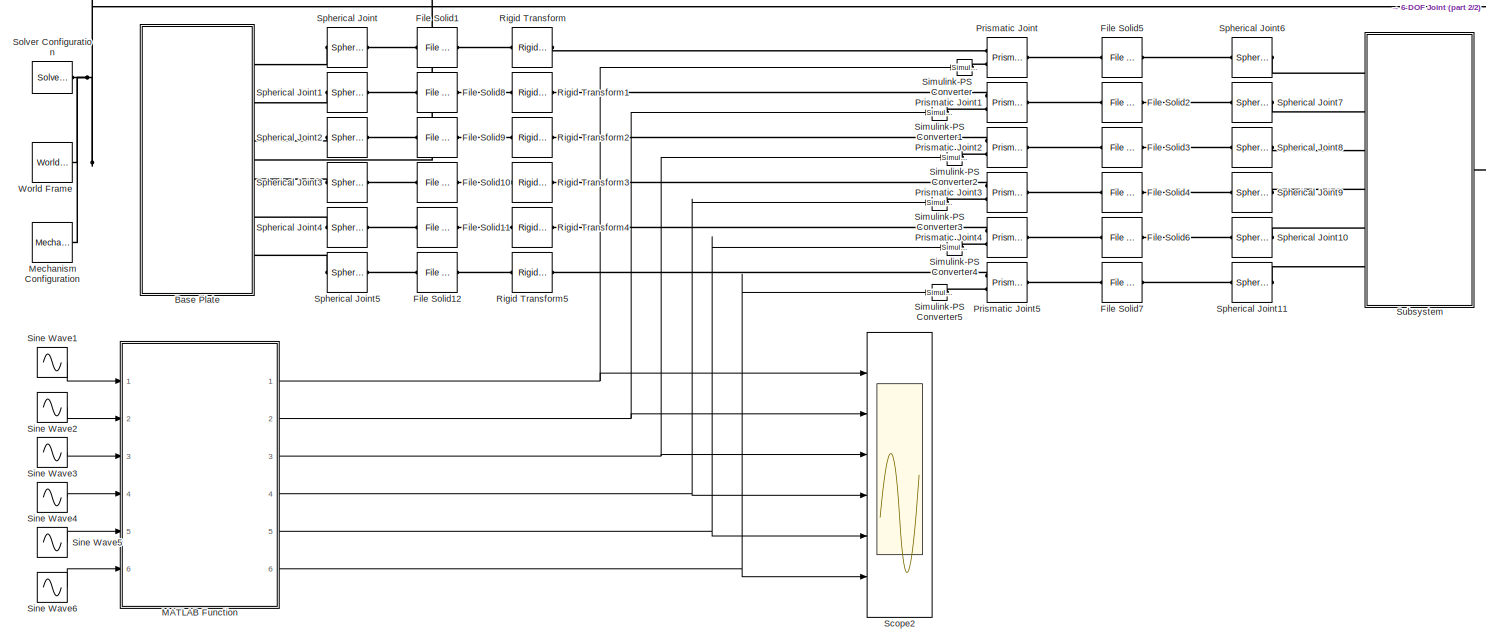
[diagram: root canvas - part 1/2, full width, middle band]
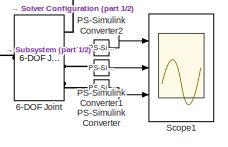
[diagram: root canvas - part 2/2, middle right region]
MODEL slx_7dcf7eff8189
KIND model
CONFIG AbsTol = auto
CONFIG EnableMultiTasking = on
CONFIG FixedStep = auto
CONFIG MaxStep = auto
CONFIG MinStep = auto
CONFIG RelTol = 1e-3
CONFIG SampleTimeConstraint = Unconstrained
CONFIG Solver = VariableStepAuto
CONFIG SolverName = VariableStepAuto
CONFIG StartTime = 0.0
CONFIG StopTime = 10.0
BLOCK [Reference] 6-DOF Joint  REF=sm_lib/Joints/6-DOF Joint
  Ports = [0, 0, 0, 0, 0, 1, 4]
  SourceBlock = sm_lib/Joints/6-DOF Joint
  SourceProductBaseCode = MS
  SourceType = 6-DOF Joint
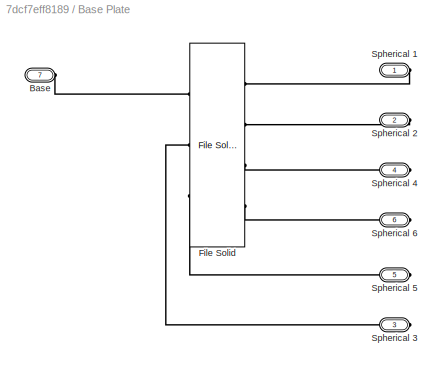
BLOCK [SubSystem] Base Plate
  Ports = [0, 0, 0, 0, 0, 1, 6]
  RequestExecContextInheritance = off
BLOCK [PMIOPort] Base Plate/Base
  NameLocation = top
  Port = 7
  Side = Left
BLOCK [Reference] Base Plate/File Solid  REF=sm_lib/Body Elements/File Solid
  NameLocation = top
  Ports = [0, 0, 0, 0, 0, 4, 3]
  SourceBlock = sm_lib/Body Elements/File Solid
  SourceProductBaseCode = MS
  SourceType = File Solid
BLOCK [PMIOPort] Base Plate/Spherical 1
  Side = Right
BLOCK [PMIOPort] Base Plate/Spherical 2
  Port = 2
  Side = Right
BLOCK [PMIOPort] Base Plate/Spherical 3
  Port = 3
  Side = Right
BLOCK [PMIOPort] Base Plate/Spherical 4
  Port = 4
  Side = Right
BLOCK [PMIOPort] Base Plate/Spherical 5
  Port = 5
  Side = Right
BLOCK [PMIOPort] Base Plate/Spherical 6
  Port = 6
  Side = Right
BLOCK [Reference] File Solid1  REF=sm_lib/Body Elements/File Solid
  Ports = [0, 0, 0, 0, 0, 1, 1]
  SourceBlock = sm_lib/Body Elements/File Solid
  SourceProductBaseCode = MS
  SourceType = File Solid
BLOCK [Reference] File Solid10  REF=sm_lib/Body Elements/File Solid
  Ports = [0, 0, 0, 0, 0, 1, 1]
  SourceBlock = sm_lib/Body Elements/File Solid
  SourceProductBaseCode = MS
  SourceType = File Solid
BLOCK [Reference] File Solid11  REF=sm_lib/Body Elements/File Solid
  Ports = [0, 0, 0, 0, 0, 1, 1]
  SourceBlock = sm_lib/Body Elements/File Solid
  SourceProductBaseCode = MS
  SourceType = File Solid
BLOCK [Reference] File Solid12  REF=sm_lib/Body Elements/File Solid
  Ports = [0, 0, 0, 0, 0, 1, 1]
  SourceBlock = sm_lib/Body Elements/File Solid
  SourceProductBaseCode = MS
  SourceType = File Solid
BLOCK [Reference] File Solid2  REF=sm_lib/Body Elements/File Solid
  NameLocation = top
  Ports = [0, 0, 0, 0, 0, 1, 1]
  SourceBlock = sm_lib/Body Elements/File Solid
  SourceProductBaseCode = MS
  SourceType = File Solid
BLOCK [Reference] File Solid3  REF=sm_lib/Body Elements/File Solid
  NameLocation = top
  Ports = [0, 0, 0, 0, 0, 1, 1]
  SourceBlock = sm_lib/Body Elements/File Solid
  SourceProductBaseCode = MS
  SourceType = File Solid
BLOCK [Reference] File Solid4  REF=sm_lib/Body Elements/File Solid
  NameLocation = top
  Ports = [0, 0, 0, 0, 0, 1, 1]
  SourceBlock = sm_lib/Body Elements/File Solid
  SourceProductBaseCode = MS
  SourceType = File Solid
BLOCK [Reference] File Solid5  REF=sm_lib/Body Elements/File Solid
  NameLocation = top
  Ports = [0, 0, 0, 0, 0, 1, 1]
  SourceBlock = sm_lib/Body Elements/File Solid
  SourceProductBaseCode = MS
  SourceType = File Solid
BLOCK [Reference] File Solid6  REF=sm_lib/Body Elements/File Solid
  NameLocation = top
  Ports = [0, 0, 0, 0, 0, 1, 1]
  SourceBlock = sm_lib/Body Elements/File Solid
  SourceProductBaseCode = MS
  SourceType = File Solid
BLOCK [Reference] File Solid7  REF=sm_lib/Body Elements/File Solid
  NameLocation = top
  Ports = [0, 0, 0, 0, 0, 1, 1]
  SourceBlock = sm_lib/Body Elements/File Solid
  SourceProductBaseCode = MS
  SourceType = File Solid
BLOCK [Reference] File Solid8  REF=sm_lib/Body Elements/File Solid
  Ports = [0, 0, 0, 0, 0, 1, 1]
  SourceBlock = sm_lib/Body Elements/File Solid
  SourceProductBaseCode = MS
  SourceType = File Solid
BLOCK [Reference] File Solid9  REF=sm_lib/Body Elements/File Solid
  Ports = [0, 0, 0, 0, 0, 1, 1]
  SourceBlock = sm_lib/Body Elements/File Solid
  SourceProductBaseCode = MS
  SourceType = File Solid
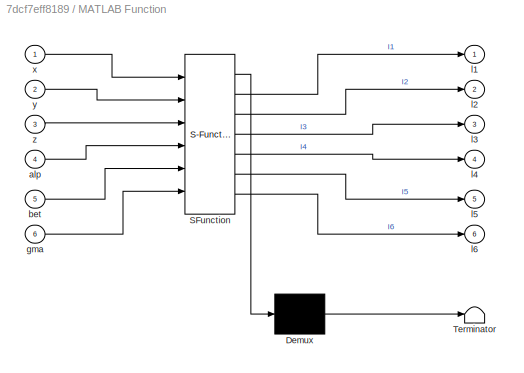
BLOCK [SubSystem] MATLAB Function
  ErrorFcn = Stateflow.Translate.translate
  PermitHierarchicalResolution = ExplicitOnly
  Ports = [6, 6]
  RequestExecContextInheritance = off
  SFBlockType = MATLAB Function
  TreatAsAtomicUnit = on
BLOCK [Demux] MATLAB Function/ Demux 
  Outputs = 1
  Ports = [1, 1]
BLOCK [S-Function] MATLAB Function/ SFunction 
  EnableBusSupport = on
  FunctionName = sf_sfun
  PortCounts = [6 7]
  Ports = [6, 7]
  SFcnIsStateOwnerBlock = off
  SFunctionDeploymentMode = off
  Tag = Stateflow S-Function 2
BLOCK [Terminator] MATLAB Function/ Terminator 
BLOCK [Inport] MATLAB Function/alp
  Port = 4
BLOCK [Inport] MATLAB Function/bet
  Port = 5
BLOCK [Inport] MATLAB Function/gma
  Port = 6
BLOCK [Outport] MATLAB Function/l1
BLOCK [Outport] MATLAB Function/l2
  Port = 2
BLOCK [Outport] MATLAB Function/l3
  Port = 3
BLOCK [Outport] MATLAB Function/l4
  Port = 4
BLOCK [Outport] MATLAB Function/l5
  Port = 5
BLOCK [Outport] MATLAB Function/l6
  Port = 6
BLOCK [Inport] MATLAB Function/x
BLOCK [Inport] MATLAB Function/y
  Port = 2
BLOCK [Inport] MATLAB Function/z
  Port = 3
BLOCK [Reference] Mechanism Configuration  REF=sm_lib/Utilities/Mechanism
Configuration
  Ports = [0, 0, 0, 0, 0, 0, 1]
  SourceBlock = sm_lib/Utilities/Mechanism\nConfiguration
  SourceProductBaseCode = MS
  SourceType = Mechanism\nConfiguration
BLOCK [Reference] PS-Simulink Converter  REF=nesl_utility/PS-Simulink
Converter
  Ports = [0, 1, 0, 0, 0, 1]
  SourceBlock = nesl_utility/PS-Simulink\nConverter
  SourceProductBaseCode = MT,SS
  SourceType = PS-Simulink\nConverter
BLOCK [Reference] PS-Simulink Converter1  REF=nesl_utility/PS-Simulink
Converter
  Ports = [0, 1, 0, 0, 0, 1]
  SourceBlock = nesl_utility/PS-Simulink\nConverter
  SourceProductBaseCode = MT,SS
  SourceType = PS-Simulink\nConverter
BLOCK [Reference] PS-Simulink Converter2  REF=nesl_utility/PS-Simulink
Converter
  Ports = [0, 1, 0, 0, 0, 1]
  SourceBlock = nesl_utility/PS-Simulink\nConverter
  SourceProductBaseCode = MT,SS
  SourceType = PS-Simulink\nConverter
BLOCK [Reference] Prismatic Joint  REF=sm_lib/Joints/Prismatic
Joint
  Ports = [0, 0, 0, 0, 0, 2, 1]
  SourceBlock = sm_lib/Joints/Prismatic\nJoint
  SourceProductBaseCode = MS
  SourceType = Prismatic\nJoint
BLOCK [Reference] Prismatic Joint1  REF=sm_lib/Joints/Prismatic
Joint
  Ports = [0, 0, 0, 0, 0, 2, 1]
  SourceBlock = sm_lib/Joints/Prismatic\nJoint
  SourceProductBaseCode = MS
  SourceType = Prismatic\nJoint
BLOCK [Reference] Prismatic Joint2  REF=sm_lib/Joints/Prismatic
Joint
  Ports = [0, 0, 0, 0, 0, 2, 1]
  SourceBlock = sm_lib/Joints/Prismatic\nJoint
  SourceProductBaseCode = MS
  SourceType = Prismatic\nJoint
BLOCK [Reference] Prismatic Joint3  REF=sm_lib/Joints/Prismatic
Joint
  Ports = [0, 0, 0, 0, 0, 2, 1]
  SourceBlock = sm_lib/Joints/Prismatic\nJoint
  SourceProductBaseCode = MS
  SourceType = Prismatic\nJoint
BLOCK [Reference] Prismatic Joint4  REF=sm_lib/Joints/Prismatic
Joint
  Ports = [0, 0, 0, 0, 0, 2, 1]
  SourceBlock = sm_lib/Joints/Prismatic\nJoint
  SourceProductBaseCode = MS
  SourceType = Prismatic\nJoint
BLOCK [Reference] Prismatic Joint5  REF=sm_lib/Joints/Prismatic
Joint
  Ports = [0, 0, 0, 0, 0, 2, 1]
  SourceBlock = sm_lib/Joints/Prismatic\nJoint
  SourceProductBaseCode = MS
  SourceType = Prismatic\nJoint
BLOCK [Reference] Rigid Transform  REF=sm_lib/Frames and
Transforms/Rigid
Transform
  Ports = [0, 0, 0, 0, 0, 1, 1]
  SourceBlock = sm_lib/Frames and\nTransforms/Rigid\nTransform
  SourceProductBaseCode = MS
  SourceType = Rigid\nTransform
BLOCK [Reference] Rigid Transform1  REF=sm_lib/Frames and
Transforms/Rigid
Transform
  Ports = [0, 0, 0, 0, 0, 1, 1]
  SourceBlock = sm_lib/Frames and\nTransforms/Rigid\nTransform
  SourceProductBaseCode = MS
  SourceType = Rigid\nTransform
BLOCK [Reference] Rigid Transform2  REF=sm_lib/Frames and
Transforms/Rigid
Transform
  Ports = [0, 0, 0, 0, 0, 1, 1]
  SourceBlock = sm_lib/Frames and\nTransforms/Rigid\nTransform
  SourceProductBaseCode = MS
  SourceType = Rigid\nTransform
BLOCK [Reference] Rigid Transform3  REF=sm_lib/Frames and
Transforms/Rigid
Transform
  Ports = [0, 0, 0, 0, 0, 1, 1]
  SourceBlock = sm_lib/Frames and\nTransforms/Rigid\nTransform
  SourceProductBaseCode = MS
  SourceType = Rigid\nTransform
BLOCK [Reference] Rigid Transform4  REF=sm_lib/Frames and
Transforms/Rigid
Transform
  Ports = [0, 0, 0, 0, 0, 1, 1]
  SourceBlock = sm_lib/Frames and\nTransforms/Rigid\nTransform
  SourceProductBaseCode = MS
  SourceType = Rigid\nTransform
BLOCK [Reference] Rigid Transform5  REF=sm_lib/Frames and
Transforms/Rigid
Transform
  Ports = [0, 0, 0, 0, 0, 1, 1]
  SourceBlock = sm_lib/Frames and\nTransforms/Rigid\nTransform
  SourceProductBaseCode = MS
  SourceType = Rigid\nTransform
BLOCK [Scope] Scope1
  Floating = off
  NumInputPorts = 3
  Ports = [3]
  ScopeSpecificationString = Simulink.scopes.TimeScopeBlockCfg('CurrentConfiguration', extmgr.ConfigurationSet(extmgr.Configuration('Core','General UI',true),extmgr.Configuration('Core','Source UI',true),extmgr.Configuration('Sources','WiredSimulink',true,'DataLoggingVariableName','ScopeData1'),extmgr.Configuration('Visuals','Time Domain',true,'SerializedDisplays',{struct('MinYLimReal','-0.29664','MaxYLimReal','0.30614','YLab...<+1527ch>
BLOCK [Scope] Scope2
  Floating = off
  NumInputPorts = 6
  Ports = [6]
  ScopeSpecificationString = Simulink.scopes.TimeScopeBlockCfg('CurrentConfiguration', extmgr.ConfigurationSet(extmgr.Configuration('Core','General UI',true),extmgr.Configuration('Core','Source UI',true),extmgr.Configuration('Sources','WiredSimulink',true,'DataLoggingVariableName','ScopeData1'),extmgr.Configuration('Visuals','Time Domain',true,'SerializedDisplays',{struct('MinYLimReal','0.05696','MaxYLimReal','0.18623','YLabe...<+1577ch>
BLOCK [Reference] Simulink-PS Converter  REF=nesl_utility/Simulink-PS
Converter
  Ports = [1, 0, 0, 0, 0, 0, 1]
  SourceBlock = nesl_utility/Simulink-PS\nConverter
  SourceProductBaseCode = SS
  SourceType = Simulink-PS\nConverter
BLOCK [Reference] Simulink-PS Converter1  REF=nesl_utility/Simulink-PS
Converter
  Ports = [1, 0, 0, 0, 0, 0, 1]
  SourceBlock = nesl_utility/Simulink-PS\nConverter
  SourceProductBaseCode = SS
  SourceType = Simulink-PS\nConverter
BLOCK [Reference] Simulink-PS Converter2  REF=nesl_utility/Simulink-PS
Converter
  Ports = [1, 0, 0, 0, 0, 0, 1]
  SourceBlock = nesl_utility/Simulink-PS\nConverter
  SourceProductBaseCode = SS
  SourceType = Simulink-PS\nConverter
BLOCK [Reference] Simulink-PS Converter3  REF=nesl_utility/Simulink-PS
Converter
  Ports = [1, 0, 0, 0, 0, 0, 1]
  SourceBlock = nesl_utility/Simulink-PS\nConverter
  SourceProductBaseCode = SS
  SourceType = Simulink-PS\nConverter
BLOCK [Reference] Simulink-PS Converter4  REF=nesl_utility/Simulink-PS
Converter
  Ports = [1, 0, 0, 0, 0, 0, 1]
  SourceBlock = nesl_utility/Simulink-PS\nConverter
  SourceProductBaseCode = SS
  SourceType = Simulink-PS\nConverter
BLOCK [Reference] Simulink-PS Converter5  REF=nesl_utility/Simulink-PS
Converter
  Ports = [1, 0, 0, 0, 0, 0, 1]
  SourceBlock = nesl_utility/Simulink-PS\nConverter
  SourceProductBaseCode = SS
  SourceType = Simulink-PS\nConverter
BLOCK [Sin] Sine Wave1
  Amplitude = 0.01
  Frequency = 3
  Ports = [0, 1]
  SampleTime = 0
BLOCK [Sin] Sine Wave2
  Amplitude = 0.01
  Frequency = 3
  Phase = pi/3
  Ports = [0, 1]
  SampleTime = 0
BLOCK [Sin] Sine Wave3
  Amplitude = 0.01
  Bias = 0.03
  Frequency = 3
  Phase = 5*pi/6
  Ports = [0, 1]
  SampleTime = 0
BLOCK [Sin] Sine Wave4
  Amplitude = 0
  Frequency = 3
  Ports = [0, 1]
  SampleTime = 0
BLOCK [Sin] Sine Wave5
  Amplitude = 0
  Frequency = 5
  Phase = 2*pi/3
  Ports = [0, 1]
  SampleTime = 0
BLOCK [Sin] Sine Wave6
  Amplitude = 0
  Frequency = 5
  Phase = 4*pi/3
  Ports = [0, 1]
  SampleTime = 0
BLOCK [Reference] Solver Configuration  REF=nesl_utility/Solver
Configuration
  Ports = [0, 0, 0, 0, 0, 0, 1]
  SourceBlock = nesl_utility/Solver\nConfiguration
  SourceProductBaseCode = MT,SS
  SourceType = Solver\nConfiguration
BLOCK [Reference] Spherical Joint  REF=sm_lib/Joints/Spherical
Joint
  Ports = [0, 0, 0, 0, 0, 1, 1]
  SourceBlock = sm_lib/Joints/Spherical\nJoint
  SourceProductBaseCode = MS
  SourceType = Spherical\nJoint
BLOCK [Reference] Spherical Joint1  REF=sm_lib/Joints/Spherical
Joint
  Ports = [0, 0, 0, 0, 0, 1, 1]
  SourceBlock = sm_lib/Joints/Spherical\nJoint
  SourceProductBaseCode = MS
  SourceType = Spherical\nJoint
BLOCK [Reference] Spherical Joint10  REF=sm_lib/Joints/Spherical
Joint
  Ports = [0, 0, 0, 0, 0, 1, 1]
  SourceBlock = sm_lib/Joints/Spherical\nJoint
  SourceProductBaseCode = MS
  SourceType = Spherical\nJoint
BLOCK [Reference] Spherical Joint11  REF=sm_lib/Joints/Spherical
Joint
  Ports = [0, 0, 0, 0, 0, 1, 1]
  SourceBlock = sm_lib/Joints/Spherical\nJoint
  SourceProductBaseCode = MS
  SourceType = Spherical\nJoint
BLOCK [Reference] Spherical Joint2  REF=sm_lib/Joints/Spherical
Joint
  Ports = [0, 0, 0, 0, 0, 1, 1]
  SourceBlock = sm_lib/Joints/Spherical\nJoint
  SourceProductBaseCode = MS
  SourceType = Spherical\nJoint
BLOCK [Reference] Spherical Joint3  REF=sm_lib/Joints/Spherical
Joint
  Ports = [0, 0, 0, 0, 0, 1, 1]
  SourceBlock = sm_lib/Joints/Spherical\nJoint
  SourceProductBaseCode = MS
  SourceType = Spherical\nJoint
BLOCK [Reference] Spherical Joint4  REF=sm_lib/Joints/Spherical
Joint
  Ports = [0, 0, 0, 0, 0, 1, 1]
  SourceBlock = sm_lib/Joints/Spherical\nJoint
  SourceProductBaseCode = MS
  SourceType = Spherical\nJoint
BLOCK [Reference] Spherical Joint5  REF=sm_lib/Joints/Spherical
Joint
  Ports = [0, 0, 0, 0, 0, 1, 1]
  SourceBlock = sm_lib/Joints/Spherical\nJoint
  SourceProductBaseCode = MS
  SourceType = Spherical\nJoint
BLOCK [Reference] Spherical Joint6  REF=sm_lib/Joints/Spherical
Joint
  Ports = [0, 0, 0, 0, 0, 1, 1]
  SourceBlock = sm_lib/Joints/Spherical\nJoint
  SourceProductBaseCode = MS
  SourceType = Spherical\nJoint
BLOCK [Reference] Spherical Joint7  REF=sm_lib/Joints/Spherical
Joint
  Ports = [0, 0, 0, 0, 0, 1, 1]
  SourceBlock = sm_lib/Joints/Spherical\nJoint
  SourceProductBaseCode = MS
  SourceType = Spherical\nJoint
BLOCK [Reference] Spherical Joint8  REF=sm_lib/Joints/Spherical
Joint
  Ports = [0, 0, 0, 0, 0, 1, 1]
  SourceBlock = sm_lib/Joints/Spherical\nJoint
  SourceProductBaseCode = MS
  SourceType = Spherical\nJoint
BLOCK [Reference] Spherical Joint9  REF=sm_lib/Joints/Spherical
Joint
  Ports = [0, 0, 0, 0, 0, 1, 1]
  SourceBlock = sm_lib/Joints/Spherical\nJoint
  SourceProductBaseCode = MS
  SourceType = Spherical\nJoint
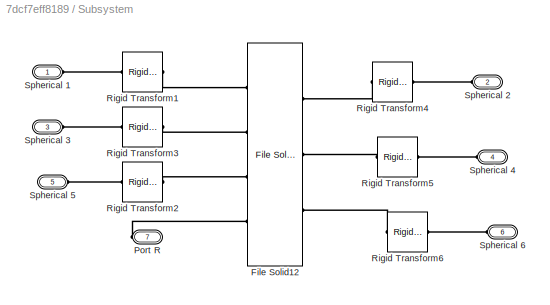
BLOCK [SubSystem] Subsystem
  Ports = [0, 0, 0, 0, 0, 6, 1]
  RequestExecContextInheritance = off
BLOCK [Reference] Subsystem/File Solid12  REF=sm_lib/Body Elements/File Solid
  Ports = [0, 0, 0, 0, 0, 4, 3]
  SourceBlock = sm_lib/Body Elements/File Solid
  SourceProductBaseCode = MS
  SourceType = File Solid
BLOCK [PMIOPort] Subsystem/Port R
  Port = 7
  Side = Right
BLOCK [Reference] Subsystem/Rigid Transform1  REF=sm_lib/Frames and
Transforms/Rigid
Transform
  NameLocation = top
  Ports = [0, 0, 0, 0, 0, 1, 1]
  SourceBlock = sm_lib/Frames and\nTransforms/Rigid\nTransform
  SourceProductBaseCode = MS
  SourceType = Rigid\nTransform
BLOCK [Reference] Subsystem/Rigid Transform2  REF=sm_lib/Frames and
Transforms/Rigid
Transform
  NameLocation = top
  Ports = [0, 0, 0, 0, 0, 1, 1]
  SourceBlock = sm_lib/Frames and\nTransforms/Rigid\nTransform
  SourceProductBaseCode = MS
  SourceType = Rigid\nTransform
BLOCK [Reference] Subsystem/Rigid Transform3  REF=sm_lib/Frames and
Transforms/Rigid
Transform
  NameLocation = top
  Ports = [0, 0, 0, 0, 0, 1, 1]
  SourceBlock = sm_lib/Frames and\nTransforms/Rigid\nTransform
  SourceProductBaseCode = MS
  SourceType = Rigid\nTransform
BLOCK [Reference] Subsystem/Rigid Transform4  REF=sm_lib/Frames and
Transforms/Rigid
Transform
  Ports = [0, 0, 0, 0, 0, 1, 1]
  SourceBlock = sm_lib/Frames and\nTransforms/Rigid\nTransform
  SourceProductBaseCode = MS
  SourceType = Rigid\nTransform
BLOCK [Reference] Subsystem/Rigid Transform5  REF=sm_lib/Frames and
Transforms/Rigid
Transform
  Ports = [0, 0, 0, 0, 0, 1, 1]
  SourceBlock = sm_lib/Frames and\nTransforms/Rigid\nTransform
  SourceProductBaseCode = MS
  SourceType = Rigid\nTransform
BLOCK [Reference] Subsystem/Rigid Transform6  REF=sm_lib/Frames and
Transforms/Rigid
Transform
  Ports = [0, 0, 0, 0, 0, 1, 1]
  SourceBlock = sm_lib/Frames and\nTransforms/Rigid\nTransform
  SourceProductBaseCode = MS
  SourceType = Rigid\nTransform
BLOCK [PMIOPort] Subsystem/Spherical 1
  Side = Left
BLOCK [PMIOPort] Subsystem/Spherical 2
  NameLocation = top
  Port = 2
  Side = Left
BLOCK [PMIOPort] Subsystem/Spherical 3
  Port = 3
  Side = Left
BLOCK [PMIOPort] Subsystem/Spherical 4
  NameLocation = top
  Port = 4
  Side = Left
BLOCK [PMIOPort] Subsystem/Spherical 5
  Port = 5
  Side = Left
BLOCK [PMIOPort] Subsystem/Spherical 6
  NameLocation = top
  Port = 6
  Side = Left
BLOCK [Reference] World Frame  REF=sm_lib/Frames and
Transforms/World Frame
  Ports = [0, 0, 0, 0, 0, 0, 1]
  SourceBlock = sm_lib/Frames and\nTransforms/World Frame
  SourceProductBaseCode = MS
  SourceType = World Frame
NET MATLAB Function:1 -> Scope2:1, Simulink-PS Converter:1
NET MATLAB Function:2 -> Scope2:2, Simulink-PS Converter1:1
NET MATLAB Function:3 -> Scope2:3, Simulink-PS Converter2:1
NET MATLAB Function:4 -> Scope2:4, Simulink-PS Converter3:1
NET MATLAB Function:5 -> Scope2:5, Simulink-PS Converter4:1
NET MATLAB Function:6 -> Scope2:6, Simulink-PS Converter5:1
LINE PS-Simulink Converter1:1 -> Scope1:2
LINE PS-Simulink Converter2:1 -> Scope1:1
LINE PS-Simulink Converter:1 -> Scope1:3
LINE Sine Wave1:1 -> MATLAB Function:1
LINE Sine Wave2:1 -> MATLAB Function:2
LINE Sine Wave3:1 -> MATLAB Function:3
LINE Sine Wave4:1 -> MATLAB Function:4
LINE Sine Wave5:1 -> MATLAB Function:5
LINE Sine Wave6:1 -> MATLAB Function:6
PLINE 6-DOF Joint:LConn1 -- Subsystem:RConn1
PNET net1: 6-DOF Joint:RConn1 -- Base Plate:LConn1 -- Mechanism Configuration:RConn1 -- Solver Configuration:RConn1 -- World Frame:RConn1
PLINE 6-DOF Joint:RConn2 -- PS-Simulink Converter2:LConn1
PLINE 6-DOF Joint:RConn3 -- PS-Simulink Converter1:LConn1
PLINE 6-DOF Joint:RConn4 -- PS-Simulink Converter:LConn1
PLINE Base Plate/Base:RConn1 -- Base Plate/File Solid:RConn1
PLINE Base Plate/File Solid:LConn1 -- Base Plate/Spherical 1:RConn1
PLINE Base Plate/File Solid:LConn2 -- Base Plate/Spherical 2:RConn1
PLINE Base Plate/File Solid:LConn3 -- Base Plate/Spherical 4:RConn1
PLINE Base Plate/File Solid:LConn4 -- Base Plate/Spherical 6:RConn1
PLINE Base Plate/File Solid:RConn2 -- Base Plate/Spherical 3:RConn1
PLINE Base Plate/File Solid:RConn3 -- Base Plate/Spherical 5:RConn1
PLINE Base Plate:RConn1 -- Spherical Joint:LConn1
PLINE Base Plate:RConn2 -- Spherical Joint1:LConn1
PLINE Base Plate:RConn3 -- Spherical Joint2:LConn1
PLINE Base Plate:RConn4 -- Spherical Joint3:LConn1
PLINE Base Plate:RConn5 -- Spherical Joint4:LConn1
PLINE Base Plate:RConn6 -- Spherical Joint5:LConn1
PLINE File Solid10:LConn1 -- Spherical Joint3:RConn1
PLINE File Solid10:RConn1 -- Rigid Transform3:LConn1
PLINE File Solid11:LConn1 -- Spherical Joint4:RConn1
PLINE File Solid11:RConn1 -- Rigid Transform4:LConn1
PLINE File Solid12:LConn1 -- Spherical Joint5:RConn1
PLINE File Solid12:RConn1 -- Rigid Transform5:LConn1
PLINE File Solid1:LConn1 -- Spherical Joint:RConn1
PLINE File Solid1:RConn1 -- Rigid Transform:LConn1
PLINE File Solid2:LConn1 -- Spherical Joint7:LConn1
PLINE File Solid2:RConn1 -- Prismatic Joint1:RConn1
PLINE File Solid3:LConn1 -- Spherical Joint8:LConn1
PLINE File Solid3:RConn1 -- Prismatic Joint2:RConn1
PLINE File Solid4:LConn1 -- Spherical Joint9:LConn1
PLINE File Solid4:RConn1 -- Prismatic Joint3:RConn1
PLINE File Solid5:LConn1 -- Spherical Joint6:LConn1
PLINE File Solid5:RConn1 -- Prismatic Joint:RConn1
PLINE File Solid6:LConn1 -- Spherical Joint10:LConn1
PLINE File Solid6:RConn1 -- Prismatic Joint4:RConn1
PLINE File Solid7:LConn1 -- Spherical Joint11:LConn1
PLINE File Solid7:RConn1 -- Prismatic Joint5:RConn1
PLINE File Solid8:LConn1 -- Spherical Joint1:RConn1
PLINE File Solid8:RConn1 -- Rigid Transform1:LConn1
PLINE File Solid9:LConn1 -- Spherical Joint2:RConn1
PLINE File Solid9:RConn1 -- Rigid Transform2:LConn1
PLINE Prismatic Joint1:LConn1 -- Rigid Transform1:RConn1
PLINE Prismatic Joint1:LConn2 -- Simulink-PS Converter1:RConn1
PLINE Prismatic Joint2:LConn1 -- Rigid Transform2:RConn1
PLINE Prismatic Joint2:LConn2 -- Simulink-PS Converter2:RConn1
PLINE Prismatic Joint3:LConn1 -- Rigid Transform3:RConn1
PLINE Prismatic Joint3:LConn2 -- Simulink-PS Converter3:RConn1
PLINE Prismatic Joint4:LConn1 -- Rigid Transform4:RConn1
PLINE Prismatic Joint4:LConn2 -- Simulink-PS Converter4:RConn1
PLINE Prismatic Joint5:LConn1 -- Rigid Transform5:RConn1
PLINE Prismatic Joint5:LConn2 -- Simulink-PS Converter5:RConn1
PLINE Prismatic Joint:LConn1 -- Rigid Transform:RConn1
PLINE Prismatic Joint:LConn2 -- Simulink-PS Converter:RConn1
PLINE Spherical Joint10:RConn1 -- Subsystem:LConn5
PLINE Spherical Joint11:RConn1 -- Subsystem:LConn6
PLINE Spherical Joint6:RConn1 -- Subsystem:LConn1
PLINE Spherical Joint7:RConn1 -- Subsystem:LConn2
PLINE Spherical Joint8:RConn1 -- Subsystem:LConn3
PLINE Spherical Joint9:RConn1 -- Subsystem:LConn4
PLINE Subsystem/File Solid12:LConn1 -- Subsystem/Rigid Transform1:LConn1
PLINE Subsystem/File Solid12:LConn2 -- Subsystem/Rigid Transform3:LConn1
PLINE Subsystem/File Solid12:LConn3 -- Subsystem/Rigid Transform2:LConn1
PLINE Subsystem/File Solid12:LConn4 -- Subsystem/Port R:RConn1
PLINE Subsystem/File Solid12:RConn1 -- Subsystem/Rigid Transform4:LConn1
PLINE Subsystem/File Solid12:RConn2 -- Subsystem/Rigid Transform5:LConn1
PLINE Subsystem/File Solid12:RConn3 -- Subsystem/Rigid Transform6:LConn1
PLINE Subsystem/Rigid Transform1:RConn1 -- Subsystem/Spherical 1:RConn1
PLINE Subsystem/Rigid Transform2:RConn1 -- Subsystem/Spherical 5:RConn1
PLINE Subsystem/Rigid Transform3:RConn1 -- Subsystem/Spherical 3:RConn1
PLINE Subsystem/Rigid Transform4:RConn1 -- Subsystem/Spherical 2:RConn1
PLINE Subsystem/Rigid Transform5:RConn1 -- Subsystem/Spherical 4:RConn1
PLINE Subsystem/Rigid Transform6:RConn1 -- Subsystem/Spherical 6:RConn1
note: NET lines group one-source signal fan-out (src -> all destinations, sorted); 1:1 wires keep LINE; PNET lines group multi-terminal physical nets as a canonical sorted terminal list (undirected conserving connections); 2-terminal nets keep the pairwise PLINE form
CHART MATLAB Function states=1 transitions=1
  STATE_LABEL 'eML_blk_kernel()'
  STATE_LABEL 'SCRIPT:\nfunction [l1, l2, l3, l4, l5, l6] = IK(x, y, z, alp, bet, gma)\npt = zeros(6,3);\npb = zeros(6,3);\nptg = zeros(6,3);\nvec = zeros(6,3);\nl = zeros(6,1);\n\n\n% // Inverse kinematics of the Stewart platform manipulator\n% // For a given pose of the moving platform what will be the required leg lengths\n\ngm=[270-22.5,270+22.5,30-22.5,30+22.5,150-22.5,150+22.5]*(pi/180);\nfor i = 1:6\n    pt(i,1:3) = rt...<+467ch>'
CHART  states=0 transitions=0
